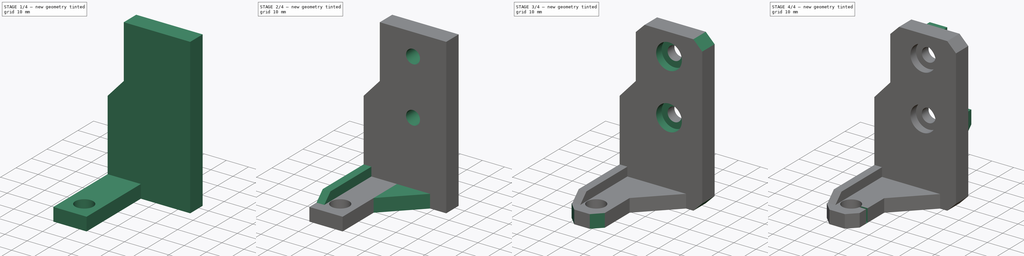
[diagram: build sequence overview — one tinted view per stage of 4, left to right]
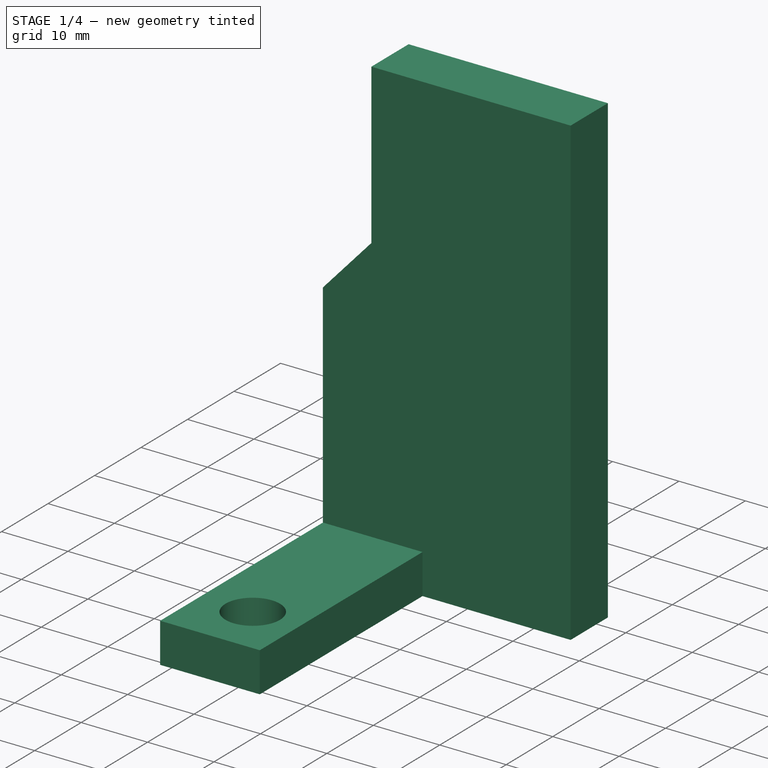
[diagram: stage 1 of 4 — iso view after this stage's code; geometry added in this stage tinted green]
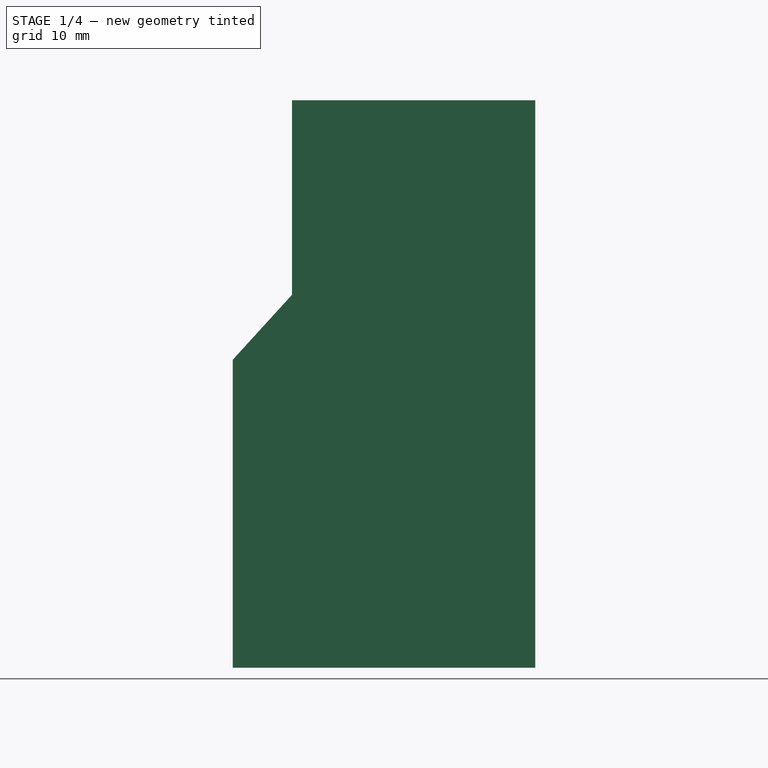
[diagram: stage 1 of 4 — front view after this stage's code; geometry added in this stage tinted green]
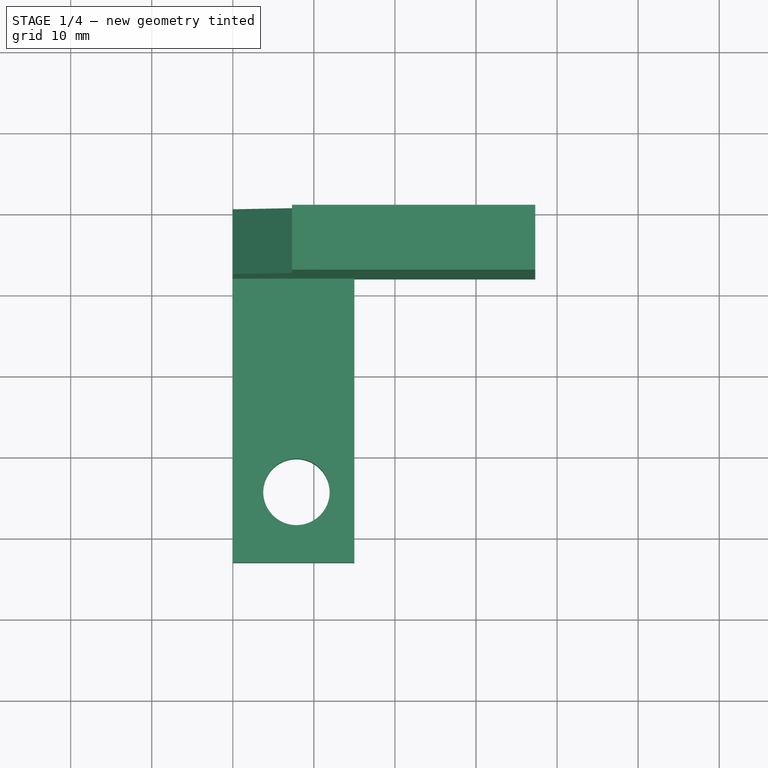
[diagram: stage 1 of 4 — top view after this stage's code; geometry added in this stage tinted green]
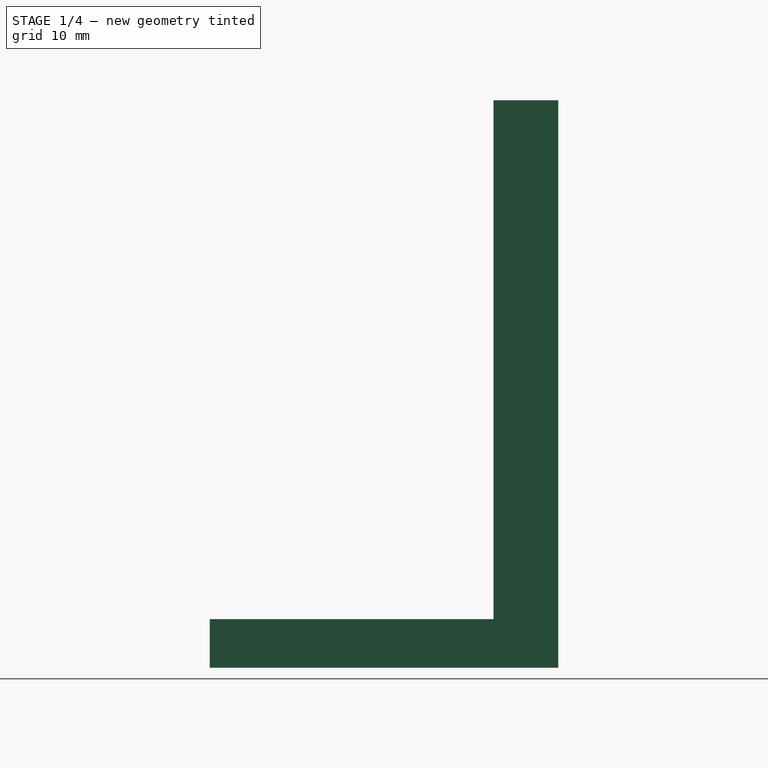
[diagram: stage 1 of 4 — right view after this stage's code; geometry added in this stage tinted green]
FCSTD DOCUMENT  (FreeCAD 0.19R)
Label: ztop_high
License: All rights reserved
LicenseURL: http://en.wikipedia.org/wiki/All_rights_reserved
objects: Sketcher::SketchObject×9, PartDesign::Pad×5, PartDesign::Chamfer×5, PartDesign::Pocket×4, PartDesign::Body×1
note: 38 computed .brp shape members not serialized (recipe doc carries the construction recipe); baked Part::Feature solids carry a one-line shape summary decoded from their .brp

FEATURE [Sketcher::SketchObject] Sketch
  FullyConstrained = true
  MapMode = 5
  Placement = pos=(0,0,0) rot=(1,0,0;1.5708rad)
  Support = -> [XZ_Plane]
  sketch-geometry (4):
    g0: LineSegment StartX=7.3 StartY=70 StartZ=0 EndX=37.3 EndY=70 EndZ=0
    g1: LineSegment StartX=37.3 StartY=70 StartZ=0 EndX=37.3 EndY=0 EndZ=0
    g2: LineSegment StartX=37.3 StartY=0 StartZ=0 EndX=7.3 EndY=0 EndZ=0
    g3: LineSegment StartX=7.3 StartY=0 StartZ=0 EndX=7.3 EndY=70 EndZ=0
  constraints (12):
    c: Coincident(g0,g1)
    c: Coincident(g1,g2)
    c: Coincident(g2,g3)
    c: Coincident(g3,g0)
    c: Horizontal(g0)
    c: Vertical(g1)
    c: Vertical(g3)
    c: PointOnObject(g1,g-1)
    c: DistanceX(g0,g0) = 30
    c: DistanceX(g2) = 7.3
    c: DistanceY(g1,g1) = 70
    c: Horizontal(g2)
FEATURE [PartDesign::Pad] Pad
  Direction = (1,1,1)
  Length = 8
  Length2 = 100
  Placement = pos=(0,0,0) rot=(1,0,0;1.5708rad)
  Profile = -> Sketch
  Type = 0
FEATURE [Sketcher::SketchObject] Sketch001
  ExternalGeometry = -> [Pad]
  FullyConstrained = true
  MapMode = 5
  Placement = pos=(0,-8,5.3e-15) rot=(1,0,0;1.5708rad)
  Support = -> [Pad]
  sketch-geometry (4):
    g0: LineSegment StartX=7.3 StartY=46 StartZ=0 EndX=0 EndY=38 EndZ=0
    g1: LineSegment StartX=0 StartY=38 StartZ=0 EndX=0 EndY=0 EndZ=0
    g2: LineSegment StartX=0 StartY=0 StartZ=0 EndX=7.3 EndY=0 EndZ=0
    g3: LineSegment StartX=7.3 StartY=0 StartZ=0 EndX=7.3 EndY=46 EndZ=0
  constraints (10):
    c: PointOnObject(g0,g-3)
    c: PointOnObject(g0,g-2)
    c: Coincident(g0,g1)
    c: Coincident(g1,g-1)
    c: Coincident(g1,g2)
    c: Coincident(g2,g-3)
    c: Coincident(g2,g3)
    c: Coincident(g3,g0)
    c: DistanceY(g1,g1) = 38
    c: DistanceY(g3,g3) = 46
FEATURE [PartDesign::Pad] Pad001
  BaseFeature = -> Pad
  Direction = (1,1,1)
  Length = 8
  Length2 = 100
  Placement = pos=(0,0,0) rot=(1,0,0;1.5708rad)
  Profile = -> Sketch001
  Refine = true
  Reversed = true
  Type = 0
FEATURE [Sketcher::SketchObject] Sketch002
  FullyConstrained = true
  MapMode = 5
  Placement = pos=(0,0,-2e-16) rot=(1,0,0;3.14159rad)
  Support = -> [Pad001]
  sketch-geometry (4):
    g0: LineSegment StartX=0 StartY=43 StartZ=0 EndX=15 EndY=43 EndZ=0
    g1: LineSegment StartX=15 StartY=43 StartZ=0 EndX=15 EndY=0 EndZ=0
    g2: LineSegment StartX=15 StartY=0 StartZ=0 EndX=0 EndY=0 EndZ=0
    g3: LineSegment StartX=0 StartY=0 StartZ=0 EndX=0 EndY=43 EndZ=0
  constraints (12):
    c: Coincident(g0,g1)
    c: Coincident(g1,g2)
    c: Coincident(g2,g3)
    c: Coincident(g3,g0)
    c: Horizontal(g0)
    c: Horizontal(g2)
    c: Vertical(g1)
    c: Vertical(g3)
    c: PointOnObject(g0,g-2)
    c: PointOnObject(g1,g-1)
    c: DistanceX(g0,g0) = 15
    c: DistanceY(g3,g3) = 43
FEATURE [PartDesign::Pad] Pad002
  BaseFeature = -> Pad001
  Direction = (1,1,1)
  Length = 6
  Length2 = 100
  Placement = pos=(0,0,0) rot=(1,0,0;1.5708rad)
  Profile = -> Sketch002
  Refine = true
  Reversed = true
  Type = 0
FEATURE [Sketcher::SketchObject] Sketch003
  FullyConstrained = true
  MapMode = 5
  Placement = pos=(0,0,-1e-16) rot=(1,0,0;3.14159rad)
  Support = -> [Pad002]
  sketch-geometry (1):
    g0: Circle CenterX=7.85 CenterY=34.3 CenterZ=0 NormalX=0 NormalY=0 NormalZ=1 AngleXU=0 Radius=4.1
  constraints (3):
    c: Radius(g0) = 4.1
    c: DistanceY(g0) = 34.3
    c: DistanceX(g0) = 7.85
FEATURE [PartDesign::Pocket] Pocket
  BaseFeature = -> Pad002
  Length = 5
  Length2 = 100
  Placement = pos=(0,0,0) rot=(1,0,0;1.5708rad)
  Profile = -> Sketch003
  Type = 1
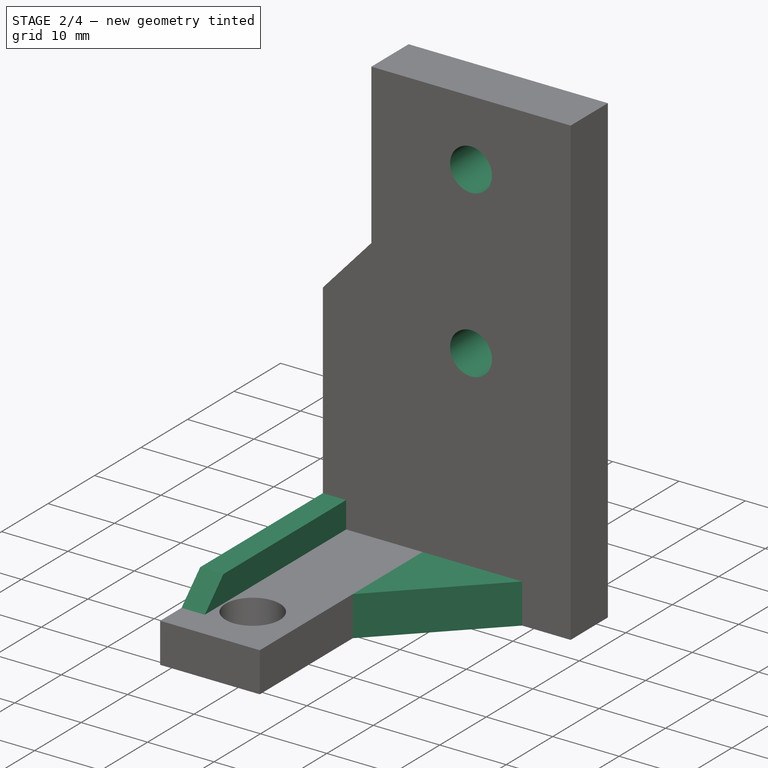
[diagram: stage 2 of 4 — iso view after this stage's code; geometry added in this stage tinted green]
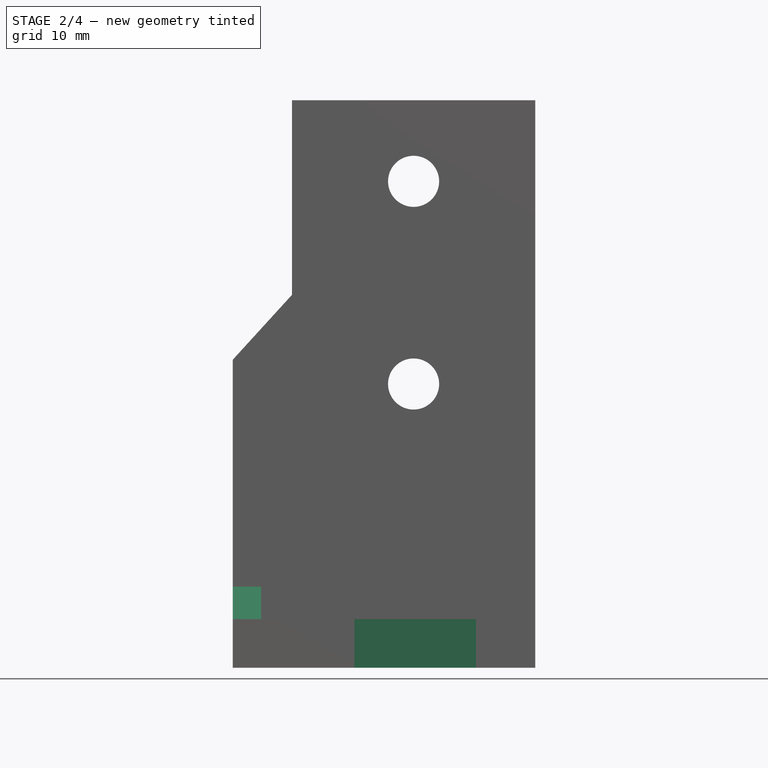
[diagram: stage 2 of 4 — front view after this stage's code; geometry added in this stage tinted green]
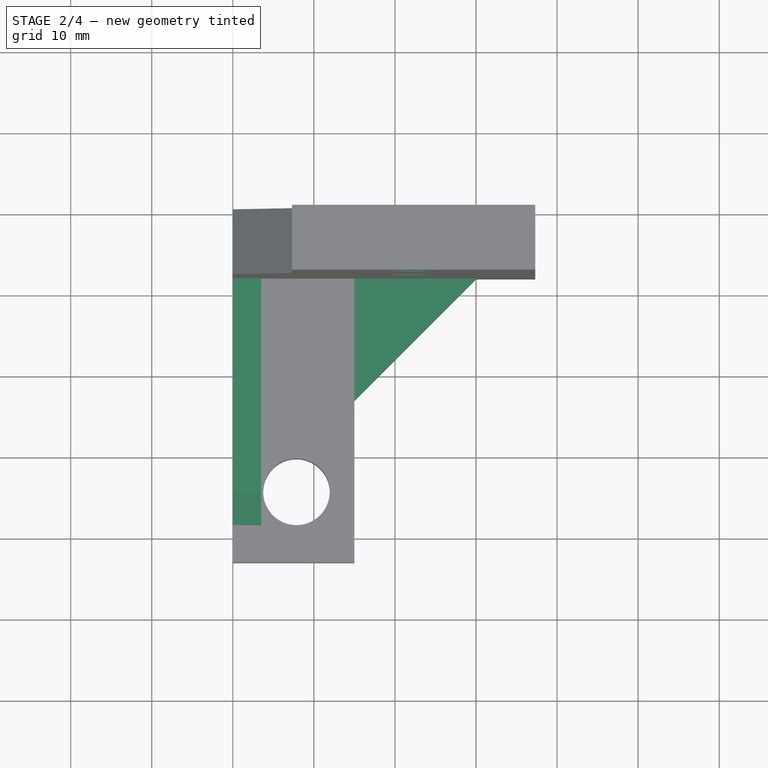
[diagram: stage 2 of 4 — top view after this stage's code; geometry added in this stage tinted green]
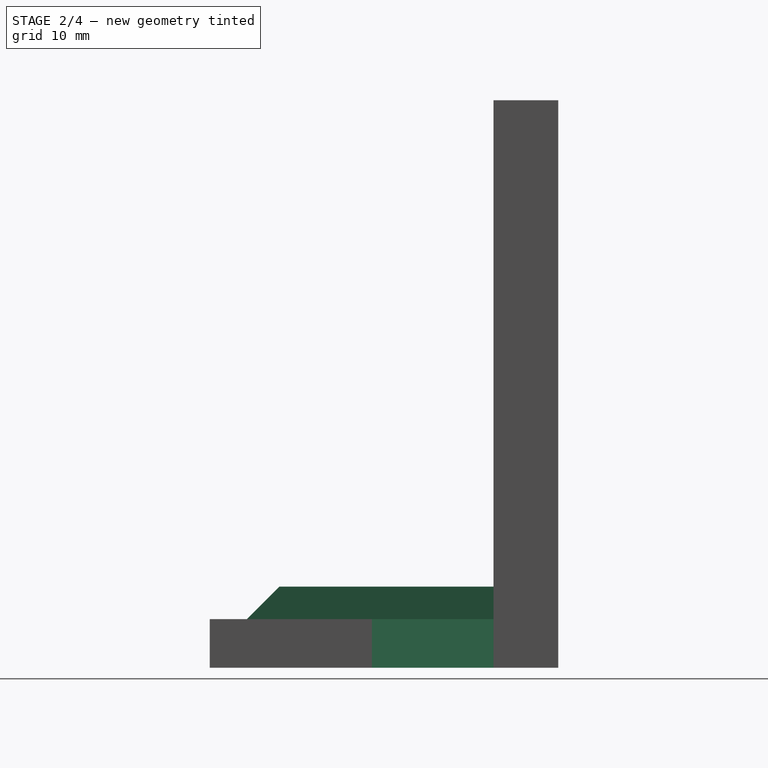
[diagram: stage 2 of 4 — right view after this stage's code; geometry added in this stage tinted green]
FEATURE [Sketcher::SketchObject] Sketch004
  ExternalGeometry = -> [Pocket]
  FullyConstrained = true
  MapMode = 5
  Placement = pos=(0,0,0) rot=(-0.707107,0,0.707107;3.14159rad)
  Support = -> [Pocket]
  sketch-geometry (4):
    g0: LineSegment StartX=-6 StartY=8 StartZ=0 EndX=-6 EndY=38.4 EndZ=0
    g1: LineSegment StartX=-6 StartY=38.4 StartZ=0 EndX=-10 EndY=34.4 EndZ=0
    g2: LineSegment StartX=-10 StartY=34.4 StartZ=0 EndX=-10 EndY=8 EndZ=0
    g3: LineSegment StartX=-10 StartY=8 StartZ=0 EndX=-6 EndY=8 EndZ=0
  constraints (10):
    c: Coincident(g-5,g0)
    c: Coincident(g0,g-3)
    c: Coincident(g0,g1)
    c: Coincident(g1,g2)
    c: PointOnObject(g2,g-4)
    c: Vertical(g2)
    c: Coincident(g2,g3)
    c: Coincident(g3,g0)
    c: Angle(g1,g0) = 0.785398
    c: Distance(g1,g0) = 4
FEATURE [PartDesign::Pad] Pad003
  BaseFeature = -> Pocket
  Direction = (1,1,1)
  Length = 3.5
  Length2 = 100
  Placement = pos=(0,0,0) rot=(1,0,0;1.5708rad)
  Profile = -> Sketch004
  Refine = true
  Reversed = true
  Type = 0
FEATURE [PartDesign::Chamfer] Chamfer
  Angle = 45
  Base = -> Pad003 [Edge15]
  BaseFeature = -> Pad003
  ChamferType = 0
  FlipDirection = false
  Placement = pos=(0,0,0) rot=(1,0,0;1.5708rad)
  Size = 15
  Size2 = 1
  SupportTransform = false
FEATURE [Sketcher::SketchObject] Sketch005
  FullyConstrained = true
  MapMode = 5
  Placement = pos=(-3e-16,-8,1.96e-14) rot=(1,0,0;1.5708rad)
  Support = -> [Chamfer]
  sketch-geometry (3):
    g0: LineSegment StartX=22.3 StartY=60 StartZ=0 EndX=22.3 EndY=35 EndZ=0
    g1: Circle CenterX=22.3 CenterY=35 CenterZ=0 NormalX=0 NormalY=0 NormalZ=1 AngleXU=0 Radius=3.15
    g2: Circle CenterX=22.3 CenterY=60 CenterZ=0 NormalX=0 NormalY=0 NormalZ=1 AngleXU=0 Radius=3.15
  constraints (8):
    c: Vertical(g0)
    c: DistanceX(g-2,g0) = 22.3
    c: Coincident(g1,g0)
    c: Coincident(g2,g0)
    c: Radius(g2) = 3.15
    c: Equal(g2,g1)
    c: DistanceY(g1) = 35
    c: DistanceY(g2) = 60
FEATURE [PartDesign::Pocket] Pocket001
  BaseFeature = -> Chamfer
  Length = 5
  Length2 = 100
  Placement = pos=(0,0,0) rot=(1,0,0;1.5708rad)
  Profile = -> Sketch005
  Type = 1
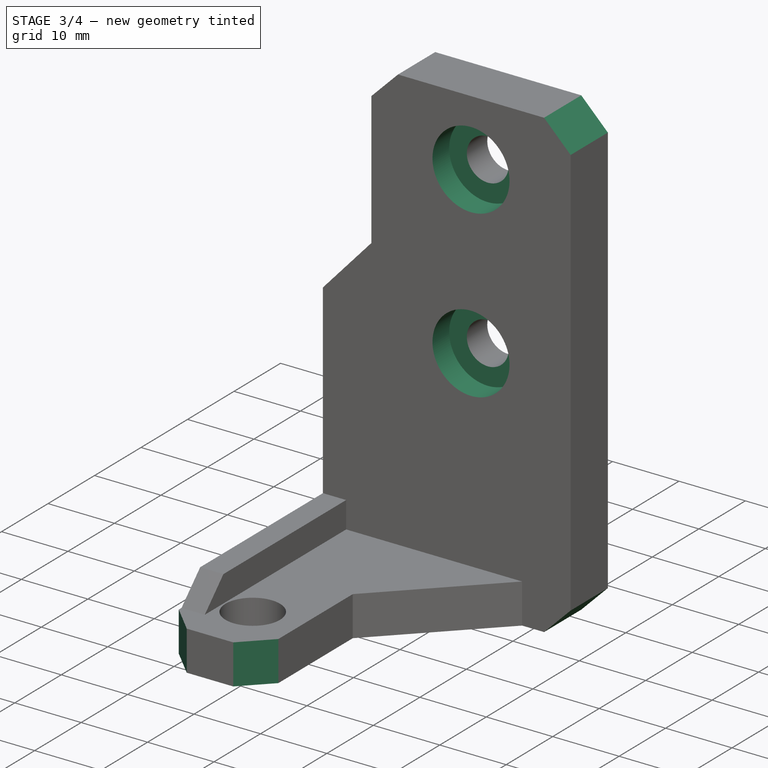
[diagram: stage 3 of 4 — iso view after this stage's code; geometry added in this stage tinted green]
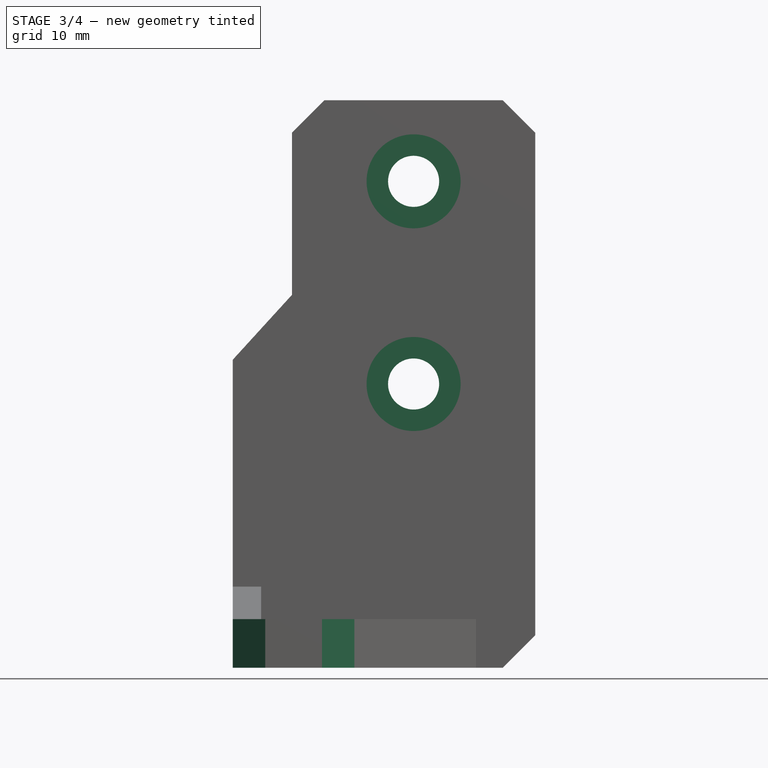
[diagram: stage 3 of 4 — front view after this stage's code; geometry added in this stage tinted green]
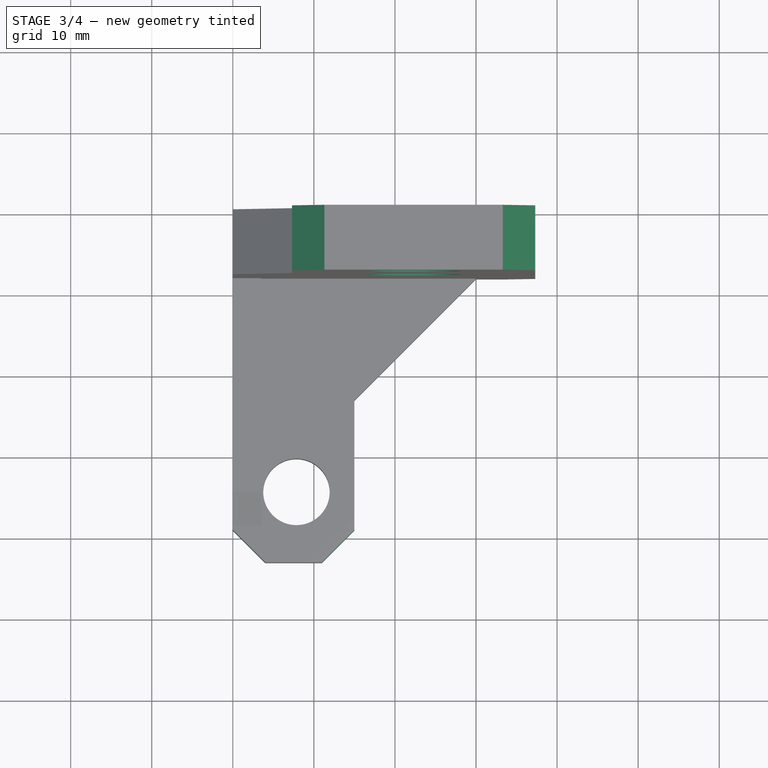
[diagram: stage 3 of 4 — top view after this stage's code; geometry added in this stage tinted green]
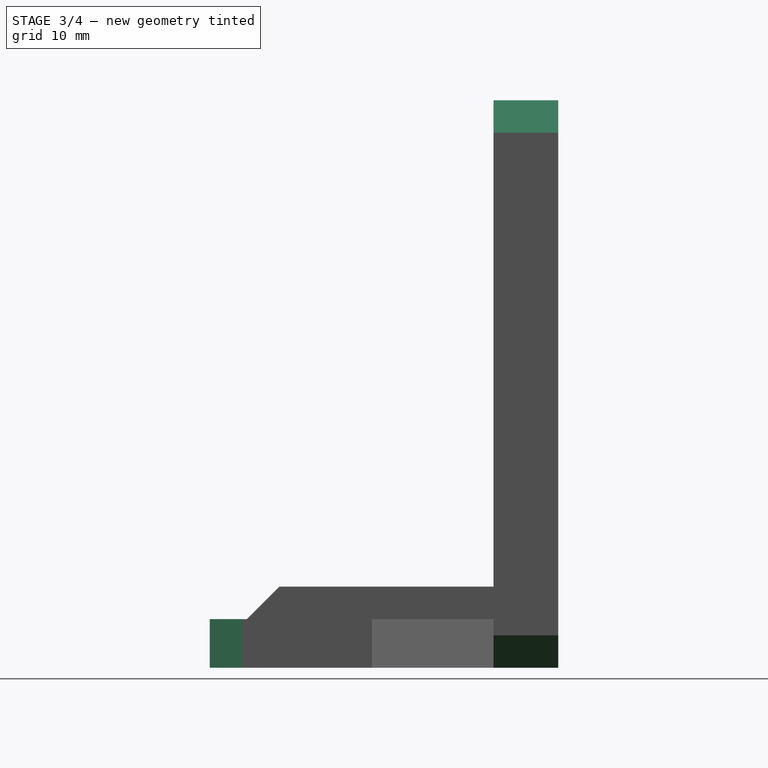
[diagram: stage 3 of 4 — right view after this stage's code; geometry added in this stage tinted green]
FEATURE [Sketcher::SketchObject] Sketch006
  ExternalGeometry = -> [Pocket001]
  FullyConstrained = true
  MapMode = 5
  Placement = pos=(-3e-16,-8,2.31e-14) rot=(1,0,0;1.5708rad)
  Support = -> [Pocket001]
  sketch-geometry (2):
    g0: Circle CenterX=22.3 CenterY=60 CenterZ=0 NormalX=0 NormalY=0 NormalZ=1 AngleXU=0 Radius=5.8
    g1: Circle CenterX=22.3 CenterY=35 CenterZ=0 NormalX=0 NormalY=0 NormalZ=1 AngleXU=0 Radius=5.8
  constraints (4):
    c: Coincident(g0,g-3)
    c: Coincident(g1,g-4)
    c: Radius(g1) = 5.8
    c: Equal(g1,g0)
FEATURE [PartDesign::Pocket] Pocket002
  BaseFeature = -> Pocket001
  Length = 3.6
  Length2 = 100
  Placement = pos=(0,0,0) rot=(1,0,0;1.5708rad)
  Profile = -> Sketch006
  Type = 0
FEATURE [PartDesign::Chamfer] Chamfer001
  Angle = 45
  Base = -> Pocket002 [Edge23,Edge31,Edge15]
  BaseFeature = -> Pocket002
  ChamferType = 0
  FlipDirection = false
  Placement = pos=(0,0,0) rot=(1,0,0;1.5708rad)
  Size = 4
  Size2 = 1
  SupportTransform = false
FEATURE [PartDesign::Chamfer] Chamfer002
  Angle = 45
  Base = -> Chamfer001 [Edge59,Edge50]
  BaseFeature = -> Chamfer001
  ChamferType = 0
  FlipDirection = false
  Placement = pos=(0,0,0) rot=(1,0,0;1.5708rad)
  Size = 4
  Size2 = 1
  SupportTransform = false
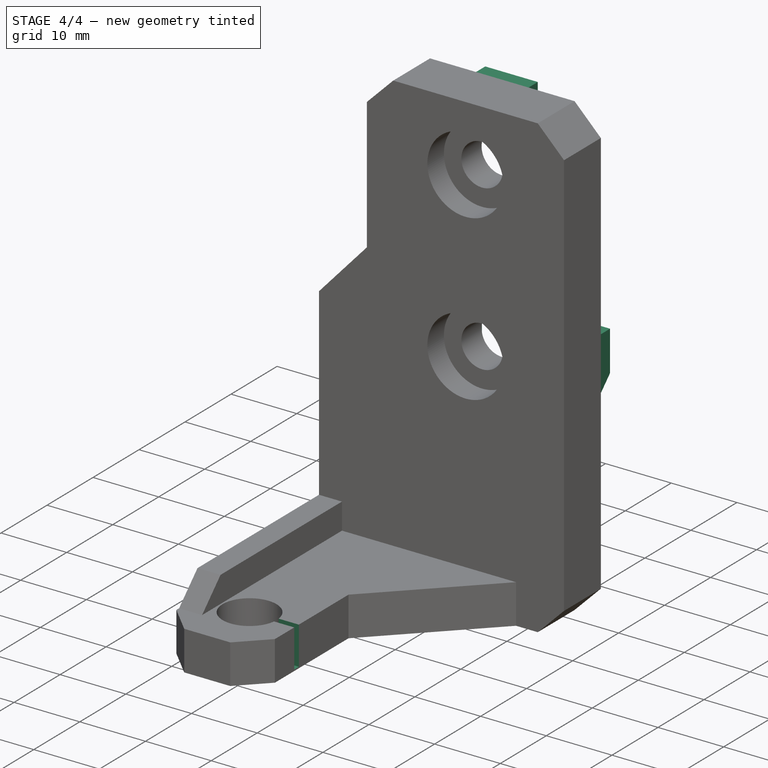
[diagram: stage 4 of 4 — iso view after this stage's code; geometry added in this stage tinted green]
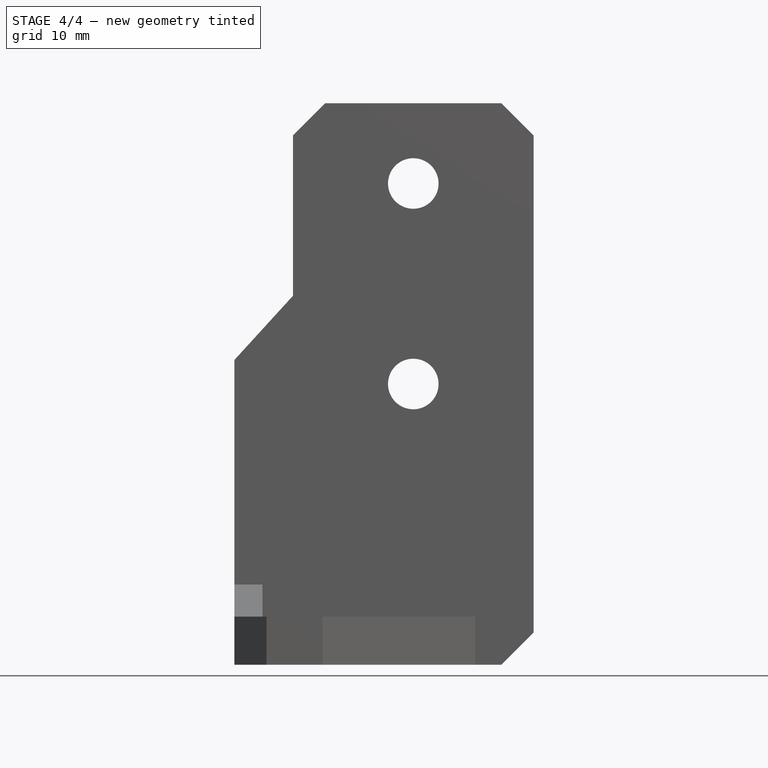
[diagram: stage 4 of 4 — front view after this stage's code; geometry added in this stage tinted green]
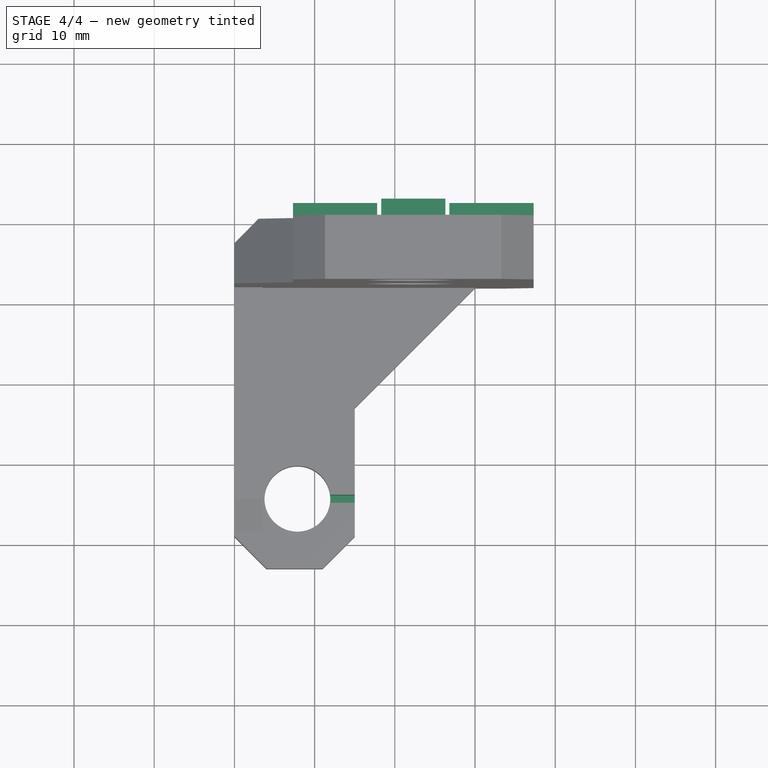
[diagram: stage 4 of 4 — top view after this stage's code; geometry added in this stage tinted green]
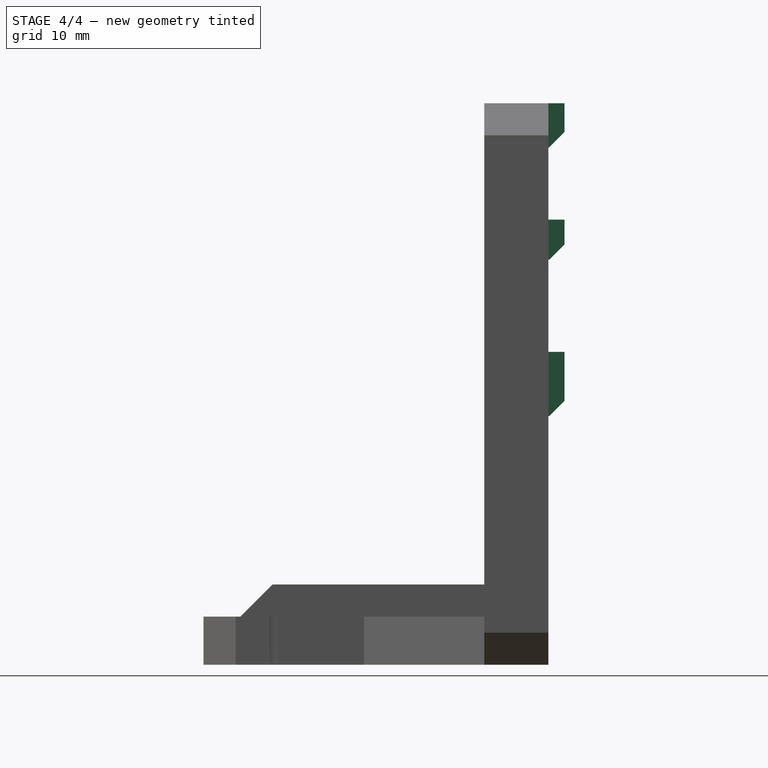
[diagram: stage 4 of 4 — right view after this stage's code; geometry added in this stage tinted green]
FEATURE [PartDesign::Chamfer] Chamfer003
  Angle = 45
  Base = -> Chamfer002 [Edge38]
  BaseFeature = -> Chamfer002
  ChamferType = 0
  FlipDirection = false
  Placement = pos=(0,0,0) rot=(1,0,0;1.5708rad)
  Size = 3
  Size2 = 1
  SupportTransform = false
FEATURE [Sketcher::SketchObject] Sketch007
  ExternalGeometry = -> [Chamfer003]
  FullyConstrained = false
  MapMode = 5
  Placement = pos=(0,1.9e-15,0) rot=(-1,0,0;1.5708rad)
  Support = -> [Chamfer003]
  sketch-geometry (20):
    g0: LineSegment StartX=7.3 StartY=-31 StartZ=0 EndX=17.8 EndY=-31 EndZ=0
    g1: LineSegment StartX=17.8 StartY=-31 StartZ=0 EndX=17.8 EndY=-39 EndZ=0
    g2: LineSegment StartX=17.8 StartY=-39 StartZ=0 EndX=7.3 EndY=-39 EndZ=0
    g3: LineSegment StartX=7.3 StartY=-39 StartZ=0 EndX=7.3 EndY=-31 EndZ=0
    g4: LineSegment StartX=26.8 StartY=-31 StartZ=0 EndX=37.3 EndY=-31 EndZ=0
    g5: LineSegment StartX=37.3 StartY=-31 StartZ=0 EndX=37.3 EndY=-39 EndZ=0
    g6: LineSegment StartX=37.3 StartY=-39 StartZ=0 EndX=26.8 EndY=-39 EndZ=0
    g7: LineSegment StartX=26.8 StartY=-39 StartZ=0 EndX=26.8 EndY=-31 EndZ=0
    g8: LineSegment StartX=18.3 StartY=-50.5 StartZ=0 EndX=26.3 EndY=-50.5 EndZ=0
    g9: LineSegment StartX=26.3 StartY=-50.5 StartZ=0 EndX=26.3 EndY=-55.5 EndZ=0
    g10: LineSegment StartX=26.3 StartY=-55.5 StartZ=0 EndX=18.3 EndY=-55.5 EndZ=0
    g11: LineSegment StartX=18.3 StartY=-55.5 StartZ=0 EndX=18.3 EndY=-50.5 EndZ=0
    g12: LineSegment StartX=18.3 StartY=-64.5 StartZ=0 EndX=26.3 EndY=-64.5 EndZ=0
    g13: LineSegment StartX=26.3 StartY=-64.5 StartZ=0 EndX=26.3 EndY=-70 EndZ=0
    g14: LineSegment StartX=26.3 StartY=-70 StartZ=0 EndX=18.3 EndY=-70 EndZ=0
    g15: LineSegment StartX=18.3 StartY=-70 StartZ=0 EndX=18.3 EndY=-64.5 EndZ=0
    g16: LineSegment StartX=22.3 StartY=-35 StartZ=0 EndX=25.1821 EndY=-35 EndZ=0
    g17: LineSegment StartX=22.3 StartY=-35 StartZ=0 EndX=22.3 EndY=-31.85 EndZ=0
    g18: LineSegment StartX=22.3 StartY=-60 StartZ=0 EndX=25.45 EndY=-60 EndZ=0
    g19: LineSegment StartX=22.3 StartY=-60 StartZ=0 EndX=22.3 EndY=-56.85 EndZ=0
  constraints (55):
    c: Coincident(g0,g1)
    c: Coincident(g1,g2)
    c: Coincident(g2,g3)
    c: Coincident(g3,g0)
    c: Horizontal(g0)
    c: Horizontal(g2)
    c: Vertical(g1)
    c: Vertical(g3)
    c: Coincident(g4,g5)
    c: Coincident(g5,g6)
    c: Coincident(g6,g7)
    c: Coincident(g7,g4)
    c: Horizontal(g4)
    c: Horizontal(g6)
    c: Vertical(g5)
    c: Vertical(g7)
    c: Coincident(g8,g9)
    c: Coincident(g9,g10)
    c: Coincident(g10,g11)
    c: Coincident(g11,g8)
    c: Horizontal(g8)
    c: Horizontal(g10)
    c: Vertical(g9)
    c: Vertical(g11)
    c: Coincident(g12,g13)
    c: Coincident(g13,g14)
    c: Coincident(g14,g15)
    c: Coincident(g15,g12)
    c: Horizontal(g12)
    c: Horizontal(g14)
    c: Vertical(g13)
    c: Vertical(g15)
    c: Coincident(g16,g-3)
    c: Coincident(g17,g16)
    c: PointOnObject(g17,g-3)
    c: Vertical(g17)
    c: Coincident(g18,g-4)
    c: PointOnObject(g18,g-4)
    c: Horizontal(g18)
    c: Coincident(g19,g18)
    c: PointOnObject(g19,g-4)
    c: Symmetric(g4,g0,g17)
    c: Equal(g3,g5)
    c: Equal(g5,g8)
    c: Equal(g8,g14)
    c: DistanceY(g3,g3) = 8
    c: Symmetric(g5,g4,g16)
    c: Symmetric(g8,g8,g19)
    c: Symmetric(g9,g12,g18)
    c: Distance(g12,g9) = 9
    c: Distance(g16,g8) = 15.5
    c: Distance(g1,g6) = 9
    c: Equal(g2,g6)
    c: PointOnObject(g5,g-5)
    c: PointOnObject(g13,g-6)
FEATURE [PartDesign::Pad] Pad004
  BaseFeature = -> Chamfer003
  Direction = (1,1,1)
  Length = 2
  Length2 = 100
  Placement = pos=(0,0,0) rot=(1,0,0;1.5708rad)
  Profile = -> Sketch007
  Type = 0
FEATURE [PartDesign::Chamfer] Chamfer004
  Angle = 45
  Base = -> Pad004 [Edge82,Edge115,Edge107,Edge94]
  BaseFeature = -> Pad004
  ChamferType = 0
  FlipDirection = false
  Placement = pos=(0,0,0) rot=(1,0,0;1.5708rad)
  Refine = true
  Size = 1.9
  Size2 = 1
  SupportTransform = false
FEATURE [Sketcher::SketchObject] Sketch008
  ExternalGeometry = -> [Chamfer004]
  FullyConstrained = true
  MapMode = 5
  Placement = pos=(0,2.27e-14,6) rot=(0,0,1;3.14159rad)
  Support = -> [Chamfer004]
  sketch-geometry (5):
    g0: LineSegment StartX=-15 StartY=34.8 StartZ=0 EndX=-11.9194 EndY=34.8 EndZ=0
    g1: LineSegment StartX=-11.9194 StartY=34.8 StartZ=0 EndX=-11.9194 EndY=33.8 EndZ=0
    g2: LineSegment StartX=-11.9194 StartY=33.8 StartZ=0 EndX=-15 EndY=33.8 EndZ=0
    g3: LineSegment StartX=-15 StartY=33.8 StartZ=0 EndX=-15 EndY=34.8 EndZ=0
    g4: LineSegment StartX=-7.85 StartY=34.3 StartZ=0 EndX=-11.95 EndY=34.3 EndZ=0
  constraints (14):
    c: Coincident(g0,g1)
    c: Coincident(g1,g2)
    c: Coincident(g2,g3)
    c: Coincident(g3,g0)
    c: Horizontal(g0)
    c: Horizontal(g2)
    c: Vertical(g1)
    c: Vertical(g3)
    c: PointOnObject(g0,g-4)
    c: PointOnObject(g1,g-3)
    c: Coincident(g4,g-3)
    c: PointOnObject(g4,g-3)
    c: Symmetric(g1,g0,g4)
    c: DistanceY(g3,g3) = 1
FEATURE [PartDesign::Pocket] Pocket003
  BaseFeature = -> Chamfer004
  Length = 5.8
  Length2 = 100
  Placement = pos=(0,0,0) rot=(1,0,0;1.5708rad)
  Profile = -> Sketch008
  Type = 0
FEATURE [PartDesign::Body] Body
  Group = -> [Sketch,Pad,Sketch001,Pad001,Sketch002,Pad002,Sketch003,Pocket,Sketch004,Pad003,Chamfer,Sketch005,Pocket001,Sketch006,Pocket002,Chamfer001,Chamfer002,Chamfer003,Sketch007,Pad004,Chamfer004,Sketch008,Pocket003]
  Origin = -> Origin
  Tip = -> Pocket003
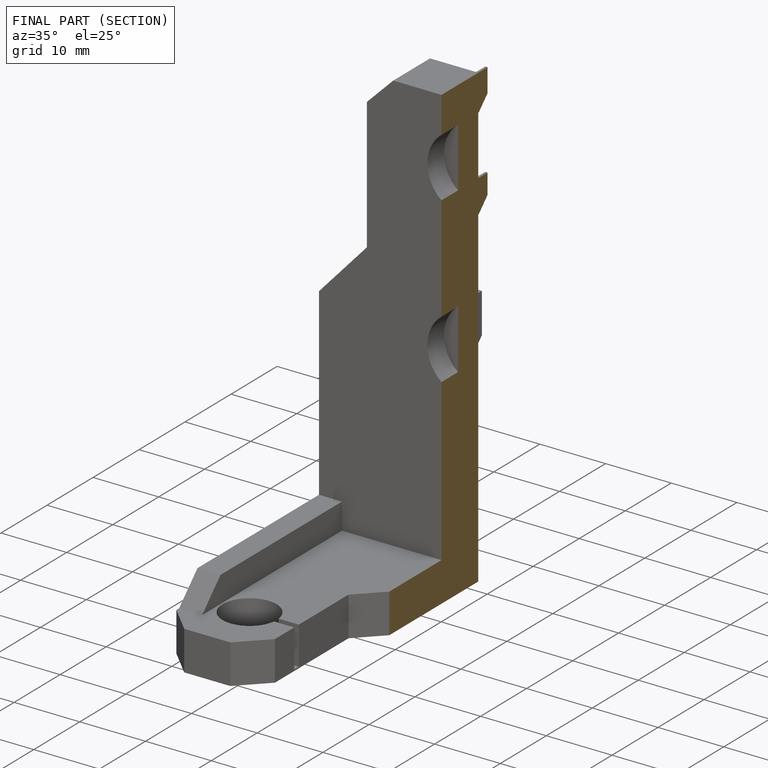
[diagram: finished part — half-section view (interior)]
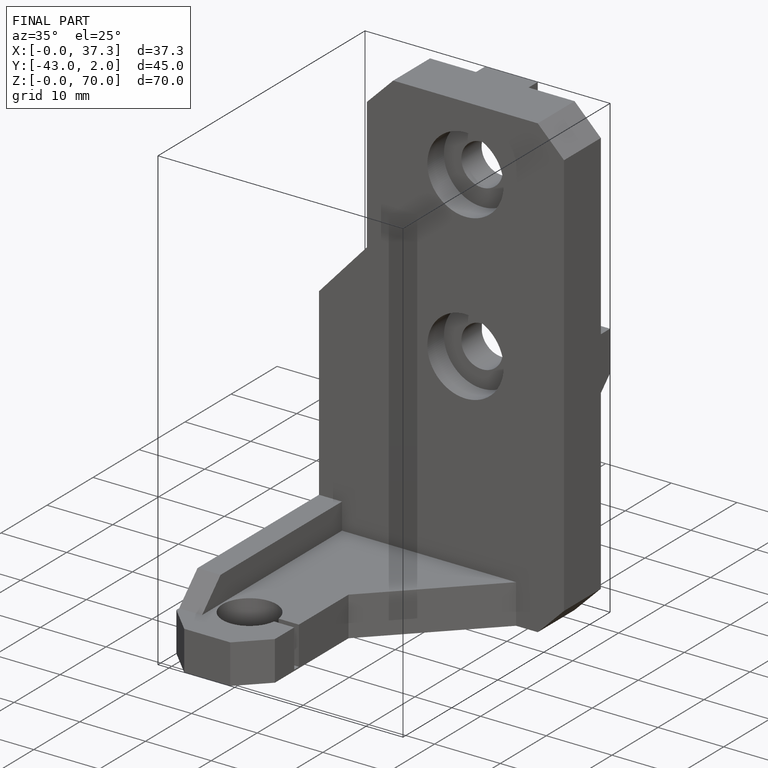
[diagram: finished part — iso view with bounding-box wireframe]
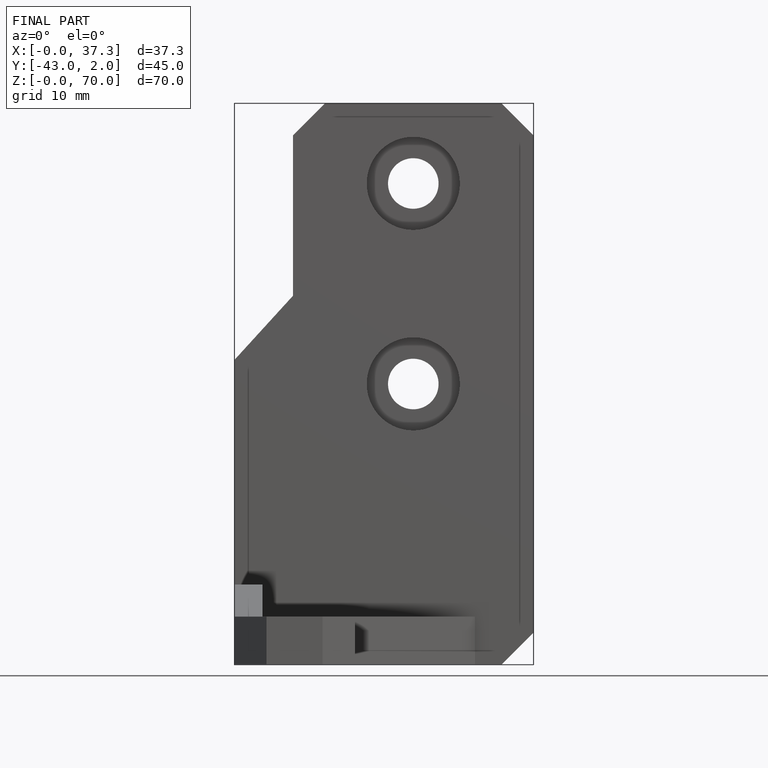
[diagram: finished part — front view with bounding-box wireframe]
